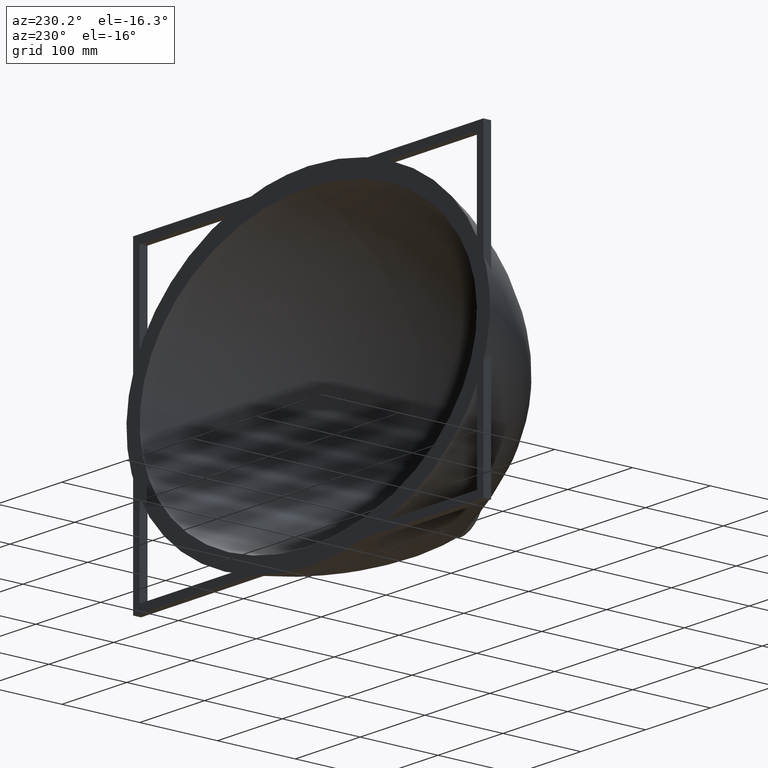
[diagram: clean part render]
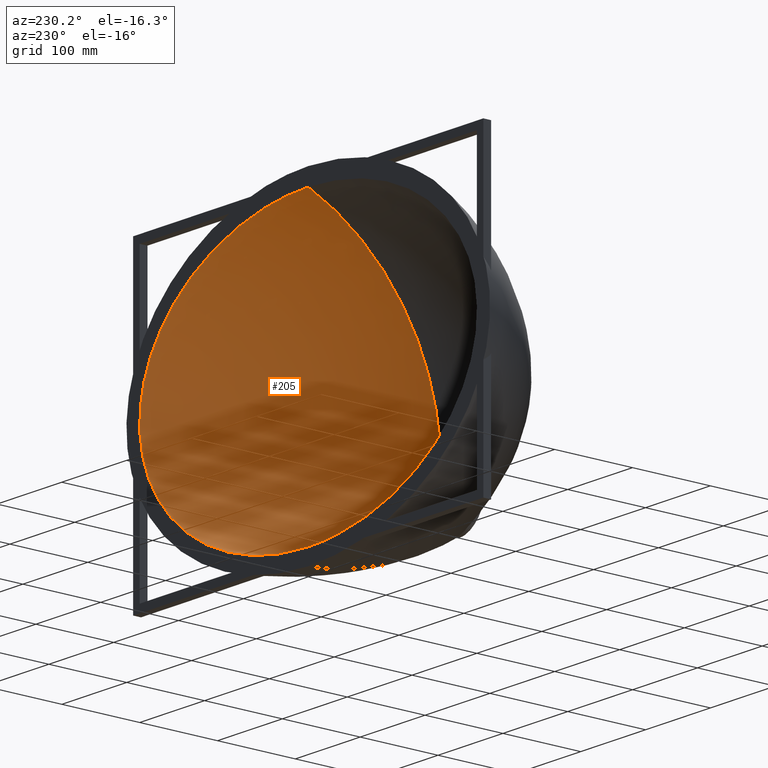
[diagram: same view with one face highlighted and labeled with its STEP entity id]
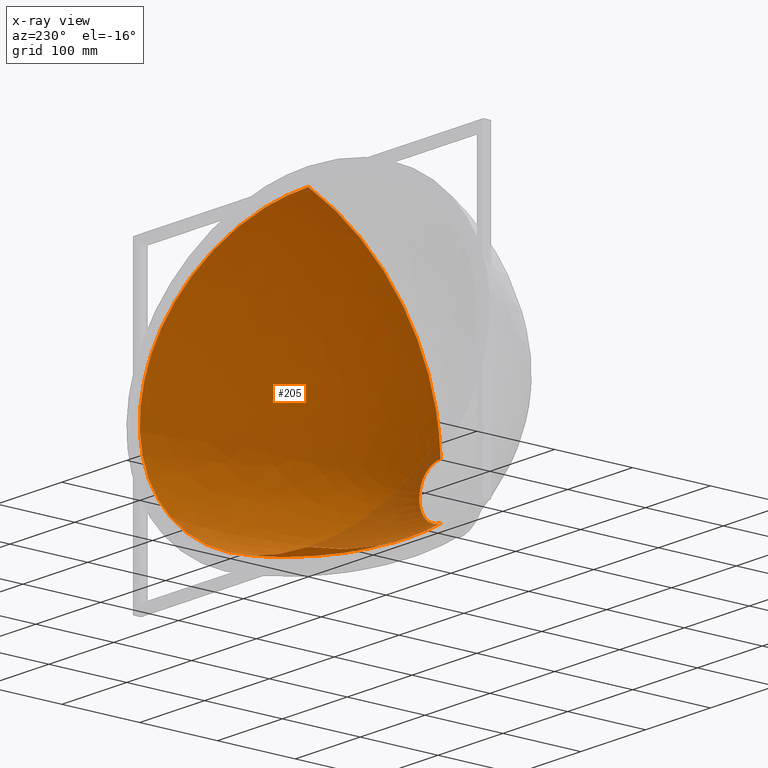
[diagram: x-ray of the same camera — body ghosted, the highlighted face saturated]
A machine part, auxiliary view. The second image highlights one B-rep face of the part: STEP entity #205.
The next image is the same camera in x-ray: the body ghosted, the highlighted face saturated — about 5% of this face is hidden behind the body in this view.
In plain terms, the highlighted face is a freeform B-spline surface patch.
Its self-contained STEP definition (entity closure, byte-faithful):
#55 = CARTESIAN_POINT ( 'NONE',  ( -101.5449471098858700, 0.0000000000000000000, 170.9625568690589400 ) ) ;
#78 = CARTESIAN_POINT ( 'NONE',  ( -2.566803417555719900, 0.0000000000000000000, -185.0000000000000000 ) ) ;
#96 = CARTESIAN_POINT ( 'NONE',  ( -161.8342083695843000, -101.6783197657684100, 88.80578691093683100 ) ) ;
#110 = VERTEX_POINT ( 'NONE', #3956 ) ;
#150 = ORIENTED_EDGE ( 'NONE', *, *, #2112, .T. ) ;
#171 = CARTESIAN_POINT ( 'NONE',  ( 10.39661467887218300, -60.48413380962352200, -180.3996876755838600 ) ) ;
#176 = CARTESIAN_POINT ( 'NONE',  ( 205.9902480284779900, 0.0000000000000000000, -114.1630345934451200 ) ) ;
#205 = ADVANCED_FACE ( 'NONE', ( #5457 ), #2160, .T. ) ;
#210 = CARTESIAN_POINT ( 'NONE',  ( 259.5316745247481000, 0.0000000000000000000, 17.82088000448748800 ) ) ;
#232 = CARTESIAN_POINT ( 'NONE',  ( 244.2896152594268200, 0.0000000000000000000, -64.95274962984925100 ) ) ;
#247 = CARTESIAN_POINT ( 'NONE',  ( -23.50363015430370300, -170.0000000000002600, -119.5035697538249500 ) ) ;
#254 = CARTESIAN_POINT ( 'NONE',  ( -18.59814842669459600, -169.9999999999999400, -123.5300270719805600 ) ) ;
#280 = CARTESIAN_POINT ( 'NONE',  ( -1.097201451189157500, -170.0000000000000300, -128.9859882443704200 ) ) ;
#291 = CARTESIAN_POINT ( 'NONE',  ( -11.73943308336916000, -169.9999999999998000, -127.1919447005213900 ) ) ;
#295 = CARTESIAN_POINT ( 'NONE',  ( -5.914309179725691500, -169.9999999999999700, -128.6510534024953100 ) ) ;
#299 = CARTESIAN_POINT ( 'NONE',  ( 181.7783064899985000, -82.71664245706091400, -115.9982643500457200 ) ) ;
#308 = CARTESIAN_POINT ( 'NONE',  ( 7.914675859144182400E-015, -170.0000000000000300, -129.0000000000001700 ) ) ;
#337 = CARTESIAN_POINT ( 'NONE',  ( -30.58158466705543800, -169.9999999999997200, -108.8823025719337100 ) ) ;
#341 = CARTESIAN_POINT ( 'NONE',  ( -27.53002336848421900, -170.0000000000000600, -114.5982864921670200 ) ) ;
#351 = CARTESIAN_POINT ( 'NONE',  ( -32.02994153714089300, -169.9999999999997700, -87.77838685151884600 ) ) ;
#356 = CARTESIAN_POINT ( 'NONE',  ( -32.82536436884399200, -169.9999999999998600, -91.61213455889432600 ) ) ;
#360 = CARTESIAN_POINT ( 'NONE',  ( -33.11611943972446400, -170.0000000000001100, -97.09694922582498600 ) ) ;
#365 = CARTESIAN_POINT ( 'NONE',  ( -32.53461509536830900, -170.0000000000002300, -102.5818216720686400 ) ) ;
#371 = CARTESIAN_POINT ( 'NONE',  ( 7.918111430696615800, -166.7986963599688300, 45.66895401434178600 ) ) ;
#378 = CARTESIAN_POINT ( 'NONE',  ( 130.6972901488588000, -72.03468751693841900, -151.8808939234452000 ) ) ;
#384 = CARTESIAN_POINT ( 'NONE',  ( 229.4518990156732900, 0.0000000000000000000, -88.80985288877889200 ) ) ;
#387 = CARTESIAN_POINT ( 'NONE',  ( -1.973936781004222500, -170.0000000000000000, -128.9398841801161100 ) ) ;
#399 = CARTESIAN_POINT ( 'NONE',  ( 219.0854808401760700, -100.2323460581834000, 1.155441149237736800 ) ) ;
#422 = CARTESIAN_POINT ( 'NONE',  ( -244.2896152223376000, 0.0000000000000000000, -64.95274969968421900 ) ) ;
#461 = CARTESIAN_POINT ( 'NONE',  ( -112.1245852803711900, 0.0000000000000000000, -167.6884198015981200 ) ) ;
#463 = CARTESIAN_POINT ( 'NONE',  ( 101.5449470893769300, 0.0000000000000000000, 170.9625568745314900 ) ) ;
#468 = CARTESIAN_POINT ( 'NONE',  ( -79.75803710388714800, -168.1268910383246300, 24.65807730239491100 ) ) ;
#484 = CARTESIAN_POINT ( 'NONE',  ( -0.4388568511917198500, -170.0000000000000300, -129.0000000000001700 ) ) ;
#543 = CARTESIAN_POINT ( 'NONE',  ( -38.77865759090425300, -121.7014424945202400, -157.4994537610010900 ) ) ;
#550 = CARTESIAN_POINT ( 'NONE',  ( -1.645451843880191900, -169.9999999999999100, -63.02925863359329400 ) ) ;
#572 = CARTESIAN_POINT ( 'NONE',  ( -3.286508291143622100, -170.0000000000000300, -63.15789940595817600 ) ) ;
#590 = CARTESIAN_POINT ( 'NONE',  ( -13.32210749721774500, -169.9999999999998300, -65.74138742436531400 ) ) ;
#591 = CARTESIAN_POINT ( 'NONE',  ( -30.98223631529779000, -169.9999999999999100, -84.67702610933527300 ) ) ;
#596 = CARTESIAN_POINT ( 'NONE',  ( -16.21662738416334500, -170.0000000000000600, -67.19847336104014300 ) ) ;
#605 = CARTESIAN_POINT ( 'NONE',  ( 5.777932479057578300, -60.42149997044546700, -180.5261086666008900 ) ) ;
#622 = CARTESIAN_POINT ( 'NONE',  ( -212.3007627005733600, -92.09182331010453000, -71.81629032477590600 ) ) ;
#662 = CARTESIAN_POINT ( 'NONE',  ( -4.918773945173699100, -170.0000000000000900, -63.36937936785528100 ) ) ;
#674 = CARTESIAN_POINT ( 'NONE',  ( -19.37360773140366600, -170.0000000000002300, -69.19179982466069100 ) ) ;
#682 = CARTESIAN_POINT ( 'NONE',  ( -21.45970067529020800, -170.0000000000000600, -70.81874945906331200 ) ) ;
#687 = CARTESIAN_POINT ( 'NONE',  ( -24.51018511363693600, -169.9999999999999100, -73.72277363439025100 ) ) ;
#697 = CARTESIAN_POINT ( 'NONE',  ( -27.53002936083850100, -170.0000000000003700, -77.40163849401473300 ) ) ;
#703 = CARTESIAN_POINT ( 'NONE',  ( -29.79273788609657500, -170.0000000000000600, -81.64009612144894800 ) ) ;
#719 = CARTESIAN_POINT ( 'NONE',  ( -8.467618967111789600E-014, -169.9999999999998900, -62.98637837613832600 ) ) ;
#727 = CARTESIAN_POINT ( 'NONE',  ( 9.732058371546907300, -169.9999999999999700, -64.44190684370720100 ) ) ;
#735 = CARTESIAN_POINT ( 'NONE',  ( 7.077546564080262400, -170.0000000000000300, -63.75888357771661000 ) ) ;
#740 = CARTESIAN_POINT ( 'NONE',  ( 4.918773945173532200, -169.9999999999999700, -63.36937936785530200 ) ) ;
#747 = CARTESIAN_POINT ( 'NONE',  ( 3.286508291143454200, -169.9999999999999400, -63.15789940595820400 ) ) ;
#761 = CARTESIAN_POINT ( 'NONE',  ( 33.58084321689379000, 0.0000000000000000000, 183.5771990633527700 ) ) ;
#771 = CARTESIAN_POINT ( 'NONE',  ( -7.077546564080428500, -170.0000000000001400, -63.75888357771660300 ) ) ;
#777 = CARTESIAN_POINT ( 'NONE',  ( 132.2521528523124600, -161.1591753289122300, -69.22836535408072200 ) ) ;
#793 = CARTESIAN_POINT ( 'NONE',  ( -34.76661030419609200, -167.1232757518996800, 42.15552983325399300 ) ) ;
#799 = CARTESIAN_POINT ( 'NONE',  ( 112.1245853174007300, 0.0000000000000000000, -167.6884197895803400 ) ) ;
#815 = CARTESIAN_POINT ( 'NONE',  ( 13.32210749721757300, -169.9999999999996900, -65.74138742436531400 ) ) ;
#839 = CARTESIAN_POINT ( 'NONE',  ( 130.0265065004052500, -166.6823960044745300, -37.59934031268797800 ) ) ;
#842 = CARTESIAN_POINT ( 'NONE',  ( -41.30958926748942900, -100.4647028521346600, 139.7592718520391800 ) ) ;
#853 = CARTESIAN_POINT ( 'NONE',  ( -59.82816381559847900, -100.6021361604114000, 136.4903864094978600 ) ) ;
#867 = CARTESIAN_POINT ( 'NONE',  ( -197.8533207069275200, 0.0000000000000000000, 120.9798537218212600 ) ) ;
#874 = CARTESIAN_POINT ( 'NONE',  ( 146.2772248432047500, 0.0000000000000000000, -153.7962908153193400 ) ) ;
#893 = CARTESIAN_POINT ( 'NONE',  ( 1.524100940938910600E-010, -118.7869051447035200, -161.3316144456561600 ) ) ;
#935 = CARTESIAN_POINT ( 'NONE',  ( 15.96528683286100000, -166.8614446746482800, 45.06505650758717300 ) ) ;
#955 = CARTESIAN_POINT ( 'NONE',  ( -9.732058371547079600, -169.9999999999999700, -64.44190684370714500 ) ) ;
#972 = CARTESIAN_POINT ( 'NONE',  ( -237.2697526475222700, 0.0000000000000000000, 77.72788248232859600 ) ) ;
#995 = CARTESIAN_POINT ( 'NONE',  ( 131.7903333139778100, -165.2807222127137000, -47.73059498201443100 ) ) ;
#1002 = CARTESIAN_POINT ( 'NONE',  ( 30.58158466705537700, -170.0000000000004300, -108.8823025719335600 ) ) ;
#1005 = CARTESIAN_POINT ( 'NONE',  ( 32.53461509536829500, -169.9999999999997700, -102.5818216720685400 ) ) ;
#1009 = CARTESIAN_POINT ( 'NONE',  ( 200.9292302996326200, -88.04168061887402500, -93.18661253542181600 ) ) ;
#1015 = CARTESIAN_POINT ( 'NONE',  ( 30.98223631716075100, -169.9999999999999400, -84.67702611448235900 ) ) ;
#1023 = ORIENTED_EDGE ( 'NONE', *, *, #3831, .F. ) ;
#1024 = CARTESIAN_POINT ( 'NONE',  ( -97.48662993548610700, -139.0680993196487800, -128.5529957980177500 ) ) ;
#1028 = CARTESIAN_POINT ( 'NONE',  ( 33.11611943972425100, -170.0000000000002000, -97.09694922582492900 ) ) ;
#1033 = CARTESIAN_POINT ( 'NONE',  ( -13.58047225771170500, -100.3324095255749000, 142.5341508308071900 ) ) ;
#1050 = CARTESIAN_POINT ( 'NONE',  ( 32.82536436884391400, -169.9999999999999400, -91.61213455889426900 ) ) ;
#1065 = CARTESIAN_POINT ( 'NONE',  ( 27.53002936083832700, -169.9999999999995500, -77.40163849401460500 ) ) ;
#1077 = CARTESIAN_POINT ( 'NONE',  ( 24.51018511363681900, -170.0000000000002300, -73.72277363439010900 ) ) ;
#1083 = CARTESIAN_POINT ( 'NONE',  ( 16.21662738416317500, -169.9999999999997700, -67.19847336104012900 ) ) ;
#1091 = CARTESIAN_POINT ( 'NONE',  ( 21.45970067529008300, -170.0000000000001400, -70.81874945906325500 ) ) ;
#1097 = CARTESIAN_POINT ( 'NONE',  ( 19.37360773140351000, -169.9999999999999400, -69.19179982466064900 ) ) ;
#1107 = CARTESIAN_POINT ( 'NONE',  ( 23.50363015430366400, -170.0000000000006800, -119.5035697538247100 ) ) ;
#1114 = CARTESIAN_POINT ( 'NONE',  ( 27.53002336848422600, -169.9999999999993500, -114.5982864921673300 ) ) ;
#1124 = CARTESIAN_POINT ( 'NONE',  ( 11.73943308336918500, -170.0000000000000000, -127.1919447005209800 ) ) ;
#1127 = CARTESIAN_POINT ( 'NONE',  ( 1.973936781004238500, -170.0000000000000300, -128.9398841801161700 ) ) ;
#1134 = CARTESIAN_POINT ( 'NONE',  ( 5.914309179725702100, -170.0000000000000300, -128.6510534024953900 ) ) ;
#1140 = CARTESIAN_POINT ( 'NONE',  ( 18.59814842669457100, -169.9999999999996300, -123.5300270719806300 ) ) ;
#1153 = CARTESIAN_POINT ( 'NONE',  ( 100.6154284231772500, -67.35913181186524000, -164.5788566093579000 ) ) ;
#1159 = CARTESIAN_POINT ( 'NONE',  ( 31.16490232506386700, -60.87504764638595100, -179.6046301080889100 ) ) ;
#1166 = CARTESIAN_POINT ( 'NONE',  ( 32.02994153826487200, -169.9999999999999100, -87.77838685693630800 ) ) ;
#1172 = CARTESIAN_POINT ( 'NONE',  ( 219.6954429199981600, -95.63849885924211900, -48.61384959088810100 ) ) ;
#1189 = CARTESIAN_POINT ( 'NONE',  ( -6.416783112928707000, 0.0000000000000000000, -184.9590691978430100 ) ) ;
#1206 = CARTESIAN_POINT ( 'NONE',  ( 13.58047226229799500, -100.3324095256412100, 142.5341508315014800 ) ) ;
#1215 = CARTESIAN_POINT ( 'NONE',  ( 215.3262452974707600, 0.0000000000000000000, 104.6215121355303200 ) ) ;
#1219 = VERTEX_POINT ( 'NONE', #3544 ) ;
#1222 = CARTESIAN_POINT ( 'NONE',  ( -130.6972901196513100, -72.03468750912125500, -151.8808939448902600 ) ) ;
#1231 = CARTESIAN_POINT ( 'NONE',  ( 3.048371017416728900E-010, -60.40230100190881800, -180.5641899279885400 ) ) ;
#1240 = CARTESIAN_POINT ( 'NONE',  ( -221.8944651530898400, -97.72422566344094700, -30.82330739874125300 ) ) ;
#1264 = CARTESIAN_POINT ( 'NONE',  ( 29.79273788864857100, -169.9999999999998900, -81.64009612622952300 ) ) ;
#1273 = VERTEX_POINT ( 'NONE', #3481 ) ;
#1281 = CARTESIAN_POINT ( 'NONE',  ( 211.8879677332387500, -101.3541522807655200, 26.41958882385945600 ) ) ;
#1311 = CARTESIAN_POINT ( 'NONE',  ( 124.8990415308468700, -168.0307683013245400, -22.10807015253968900 ) ) ;
#1330 = CARTESIAN_POINT ( 'NONE',  ( 47.99079047207255400, -167.3837411548451800, 38.76304219584049100 ) ) ;
#1352 = CARTESIAN_POINT ( 'NONE',  ( 0.4388568511917435000, -170.0000000000000300, -129.0000000000002000 ) ) ;
#1398 = CARTESIAN_POINT ( 'NONE',  ( -168.3880016434328300, 0.0000000000000000000, 141.7818512493566300 ) ) ;
#1403 = CARTESIAN_POINT ( 'NONE',  ( -68.94524658473652300, 0.0000000000000000000, -179.5850697860287300 ) ) ;
#1454 = CARTESIAN_POINT ( 'NONE',  ( -215.3262453614607400, 0.0000000000000000000, 104.6215120696889800 ) ) ;
#1473 = CARTESIAN_POINT ( 'NONE',  ( -1.445203445798531200, -118.7869051446153900, -161.3316144457045000 ) ) ;
#1478 = CARTESIAN_POINT ( 'NONE',  ( -19.48563583432444400, -119.3554168077772600, -160.5968919786662600 ) ) ;
#1483 = CARTESIAN_POINT ( 'NONE',  ( 1.524100940938910600E-010, -118.7869051447035200, -161.3316144456561600 ) ) ;
#1490 = CARTESIAN_POINT ( 'NONE',  ( 1.097201451189173700, -170.0000000000000300, -128.9859882443704500 ) ) ;
#1495 = CARTESIAN_POINT ( 'NONE',  ( 7.914675859144182400E-015, -170.0000000000000300, -129.0000000000001700 ) ) ;
#1506 = CARTESIAN_POINT ( 'NONE',  ( 128.6466772893562100, -156.8945205948489800, -84.56033403448825000 ) ) ;
#1512 = CARTESIAN_POINT ( 'NONE',  ( -34.61329639284462400, 0.0000000000000000000, -183.9673373527186000 ) ) ;
#1516 = EDGE_CURVE ( 'NONE', #110, #1219, #4203, .T. ) ;
#1527 = CARTESIAN_POINT ( 'NONE',  ( -132.8822941484146200, -163.6670079822287700, -57.73574673699650400 ) ) ;
#1533 = CARTESIAN_POINT ( 'NONE',  ( 34.61329639869962400, 0.0000000000000000000, -183.9673373519855200 ) ) ;
#1542 = CARTESIAN_POINT ( 'NONE',  ( -15.96528683149694000, -166.8614446744870700, 45.06505650654871400 ) ) ;
#1553 = CARTESIAN_POINT ( 'NONE',  ( 176.7752966758009700, -101.7757040723820100, 75.15800772592653800 ) ) ;
#1560 = CARTESIAN_POINT ( 'NONE',  ( 161.8342083234571200, -101.6783197671980300, 88.80578695623522400 ) ) ;
#1565 = CARTESIAN_POINT ( 'NONE',  ( -103.1489522319092300, -168.5363619780128200, 6.716406169552066700 ) ) ;
#1572 = CARTESIAN_POINT ( 'NONE',  ( -196.2075036124609800, -101.7291505643255500, 52.53914676512866300 ) ) ;
#1578 = CARTESIAN_POINT ( 'NONE',  ( 221.0554262184481600, -99.06643837885886200, -15.00529072263784900 ) ) ;
#1582 = CARTESIAN_POINT ( 'NONE',  ( 212.3007627212429600, -92.09182331956063200, -71.81629026579831500 ) ) ;
#1601 = CARTESIAN_POINT ( 'NONE',  ( 103.1489522079936600, -168.5363619801854600, 6.716406199087402700 ) ) ;
#1607 = CARTESIAN_POINT ( 'NONE',  ( -6.500890366905893300, -118.8853150000898200, -161.2054162392524900 ) ) ;
#1620 = CARTESIAN_POINT ( 'NONE',  ( 158.0814858641102200, -77.26741791087583500, -135.6597801079388700 ) ) ;
#1632 = CARTESIAN_POINT ( 'NONE',  ( 19.48563583624291300, -119.3554168101525500, -160.5968919771172200 ) ) ;
#1641 = CARTESIAN_POINT ( 'NONE',  ( 7.914675859144182400E-015, -170.0000000000000300, -129.0000000000001700 ) ) ;
#1646 = CARTESIAN_POINT ( 'NONE',  ( 0.4388568511917435000, -170.0000000000000300, -129.0000000000002000 ) ) ;
#1648 = CARTESIAN_POINT ( 'NONE',  ( 41.30958926724046200, -100.4647028523407400, 139.7592718547376500 ) ) ;
#1659 = CARTESIAN_POINT ( 'NONE',  ( 94.23376495546654000, -168.4188731049061400, 14.64182386654166700 ) ) ;
#1660 = CARTESIAN_POINT ( 'NONE',  ( 1.097201451189173700, -170.0000000000000300, -128.9859882443704500 ) ) ;
#1665 = CARTESIAN_POINT ( 'NONE',  ( 1.973936781004238500, -170.0000000000000300, -128.9398841801161700 ) ) ;
#1671 = EDGE_LOOP ( 'NONE', ( #4057, #1023, #150, #4823 ) ) ;
#1675 = CARTESIAN_POINT ( 'NONE',  ( -114.9757934278126900, -168.4810046370724000, -6.558884658889772000 ) ) ;
#1683 = CARTESIAN_POINT ( 'NONE',  ( 5.914309179725702100, -170.0000000000000300, -128.6510534024953900 ) ) ;
#1691 = CARTESIAN_POINT ( 'NONE',  ( 11.73943308336918500, -170.0000000000000000, -127.1919447005209800 ) ) ;
#1693 = CARTESIAN_POINT ( 'NONE',  ( 3.612973020026208000, -118.8099933056775700, -161.3023222456049800 ) ) ;
#1706 = CARTESIAN_POINT ( 'NONE',  ( 18.59814842669457100, -169.9999999999996300, -123.5300270719806300 ) ) ;
#1712 = CARTESIAN_POINT ( 'NONE',  ( 23.50363015430366400, -170.0000000000006800, -119.5035697538247100 ) ) ;
#1723 = CARTESIAN_POINT ( 'NONE',  ( -131.7903333150701400, -165.2807222076900800, -47.73059500546416700 ) ) ;
#1735 = CARTESIAN_POINT ( 'NONE',  ( 27.53002336848422600, -169.9999999999993500, -114.5982864921673300 ) ) ;
#1753 = CARTESIAN_POINT ( 'NONE',  ( 30.58158466705537700, -170.0000000000004300, -108.8823025719335600 ) ) ;
#1760 = CARTESIAN_POINT ( 'NONE',  ( 32.53461509536829500, -169.9999999999997700, -102.5818216720685400 ) ) ;
#1768 = CARTESIAN_POINT ( 'NONE',  ( 33.11611943972425100, -170.0000000000002000, -97.09694922582492900 ) ) ;
#1779 = CARTESIAN_POINT ( 'NONE',  ( -73.45947751149606100, 0.0000000000000000000, 177.8115466436256900 ) ) ;
#1780 = CARTESIAN_POINT ( 'NONE',  ( 32.82536436884391400, -169.9999999999999400, -91.61213455889426900 ) ) ;
#1792 = CARTESIAN_POINT ( 'NONE',  ( 32.02994153826487200, -169.9999999999999100, -87.77838685693630800 ) ) ;
#1799 = CARTESIAN_POINT ( 'NONE',  ( 38.77865759878368800, -121.7014424992332200, -157.4994537571244000 ) ) ;
#1800 = CARTESIAN_POINT ( 'NONE',  ( 30.98223631716075100, -169.9999999999999400, -84.67702611448235900 ) ) ;
#1806 = CARTESIAN_POINT ( 'NONE',  ( 29.79273788864857100, -169.9999999999998900, -81.64009612622952300 ) ) ;
#1813 = CARTESIAN_POINT ( 'NONE',  ( 27.53002936083832700, -169.9999999999995500, -77.40163849401460500 ) ) ;
#1824 = CARTESIAN_POINT ( 'NONE',  ( 3.888477213831453800E-009, 0.0000000000000000000, 185.1377951512043300 ) ) ;
#1825 = CARTESIAN_POINT ( 'NONE',  ( 24.51018511363681900, -170.0000000000002300, -73.72277363439010900 ) ) ;
#1831 = CARTESIAN_POINT ( 'NONE',  ( 21.45970067529008300, -170.0000000000001400, -70.81874945906325500 ) ) ;
#1834 = CARTESIAN_POINT ( 'NONE',  ( 19.37360773140351000, -169.9999999999999400, -69.19179982466064900 ) ) ;
#1845 = CARTESIAN_POINT ( 'NONE',  ( 16.21662738416317500, -169.9999999999997700, -67.19847336104012900 ) ) ;
#1852 = CARTESIAN_POINT ( 'NONE',  ( -111.4772774934118800, -145.6209346718663700, -114.7372125259618200 ) ) ;
#1855 = CARTESIAN_POINT ( 'NONE',  ( 13.32210749721757300, -169.9999999999996900, -65.74138742436531400 ) ) ;
#1863 = CARTESIAN_POINT ( 'NONE',  ( 9.732058371546907300, -169.9999999999999700, -64.44190684370720100 ) ) ;
#1868 = CARTESIAN_POINT ( 'NONE',  ( 6.500890367500512700, -118.8853150008827000, -161.2054162387754300 ) ) ;
#1879 = CARTESIAN_POINT ( 'NONE',  ( 132.8822941484927200, -163.6670079876717000, -57.73574671448551500 ) ) ;
#1880 = CARTESIAN_POINT ( 'NONE',  ( 7.077546564080262400, -170.0000000000000300, -63.75888357771661000 ) ) ;
#1885 = CARTESIAN_POINT ( 'NONE',  ( 4.918773945173532200, -169.9999999999999700, -63.36937936785530200 ) ) ;
#1893 = CARTESIAN_POINT ( 'NONE',  ( -132.2521528471505400, -161.1591753186759200, -69.22836539047772000 ) ) ;
#1901 = CARTESIAN_POINT ( 'NONE',  ( 3.286508291143454200, -169.9999999999999400, -63.15789940595820400 ) ) ;
#1905 = CARTESIAN_POINT ( 'NONE',  ( 1.645451843880019200, -169.9999999999998900, -63.02925863359329400 ) ) ;
#1907 = CARTESIAN_POINT ( 'NONE',  ( -27.42489433728246300, -100.3845558589379400, 141.4996067370633500 ) ) ;
#1917 = CARTESIAN_POINT ( 'NONE',  ( 197.8533206427430900, 0.0000000000000000000, 120.9798537739468100 ) ) ;
#1922 = CARTESIAN_POINT ( 'NONE',  ( -11.54635462865013400, 0.0000000000000000000, -184.8230582913892300 ) ) ;
#1933 = CARTESIAN_POINT ( 'NONE',  ( -33.58084321257378900, 0.0000000000000000000, 183.5771990638075400 ) ) ;
#1936 = CARTESIAN_POINT ( 'NONE',  ( 0.5484839479599433700, -169.9999999999998900, -63.00067179528998200 ) ) ;
#1938 = CARTESIAN_POINT ( 'NONE',  ( 59.82816380992162000, -100.6021361607201800, 136.4903864143604200 ) ) ;
#1943 = CARTESIAN_POINT ( 'NONE',  ( -8.467618967111789600E-014, -169.9999999999998900, -63.00067179528998200 ) ) ;
#1951 = CARTESIAN_POINT ( 'NONE',  ( 260.1059458264750200, 0.0000000000000000000, -0.6589969328866943600 ) ) ;
#2023 = CARTESIAN_POINT ( 'NONE',  ( -221.0554262213602500, -99.06643837468026000, -15.00529077107875700 ) ) ;
#2025 = CARTESIAN_POINT ( 'NONE',  ( 1.445203446103377400, -118.7869051447916700, -161.3316144456078100 ) ) ;
#2037 = B_SPLINE_CURVE_WITH_KNOTS ( 'NONE', 3,
 ( #4580, #4627, #4488, #4482 ),
 .UNSPECIFIED., .F., .F.,
 ( 4, 4 ),
 ( 0.0000000000000000000, 1.000000000000000000 ),
 .UNSPECIFIED. ) ;
#2038 = CARTESIAN_POINT ( 'NONE',  ( 1.645451843880023000, -169.9999999999998900, -63.02925863359329400 ) ) ;
#2046 = CARTESIAN_POINT ( 'NONE',  ( 81.01955231311032400, -132.7755290318717700, -140.1380242361425400 ) ) ;
#2051 = CARTESIAN_POINT ( 'NONE',  ( -31.16490232121122300, -60.87504764441063500, -179.6046301102378800 ) ) ;
#2065 = CARTESIAN_POINT ( 'NONE',  ( -81.01955229871150300, -132.7755290224717400, -140.1380242488191100 ) ) ;
#2070 = CARTESIAN_POINT ( 'NONE',  ( 113.2358966370135500, -101.1575478549437200, 119.1701626086586300 ) ) ;
#2101 = CARTESIAN_POINT ( 'NONE',  ( 139.1342930917562900, 0.0000000000000000000, 157.3938885502267900 ) ) ;
#2112 = EDGE_CURVE ( 'NONE', #1273, #1219, #2037, .T. ) ;
#2127 = CARTESIAN_POINT ( 'NONE',  ( 3.048371017416728900E-010, -60.40230100190881800, -180.5641899279885400 ) ) ;
#2134 = CARTESIAN_POINT ( 'NONE',  ( 62.64783615071378600, -127.1529339918621400, -149.3729875084795300 ) ) ;
#2158 = CARTESIAN_POINT ( 'NONE',  ( 111.4772775086861300, -145.6209346836106700, -114.7372125029550500 ) ) ;
#2160 = B_SPLINE_SURFACE_WITH_KNOTS ( 'NONE', 3, 3, ( 
 ( #4396, #5434, #5327, #2788, #1533, #2436, #799, #874, #2431, #176, #384, #232, #3832, #2708, #1951, #210, #2689, #3873, #1215, #1917, #2347, #2101, #463, #2576, #4373, #761, #3497, #1824, #2380, #1933, #3545, #1779, #55, #2172, #1398, #867, #1454, #972, #2601, #2250, #3394, #2512, #2190, #422, #2268, #2476, #3296, #5331, #461, #1403, #1512, #1922, #1189, #78, #3052 ),
 ( #2127, #2650, #605, #171, #1159, #2317, #1153, #378, #1620, #299, #1009, #1582, #1172, #2810, #1578, #399, #1281, #2375, #1553, #1560, #3178, #2070, #2306, #1938, #1648, #3475, #1206, #2331, #1033, #1907, #842, #853, #2521, #3672, #2357, #96, #2403, #1572, #2450, #5470, #2023, #1240, #2532, #622, #2444, #2211, #2415, #1222, #2362, #3356, #2051, #2231, #5453, #4055, #1231 ),
 ( #893, #2025, #1693, #1868, #1632, #1799, #2134, #2046, #3311, #2158, #3064, #1506, #777, #1879, #995, #839, #1311, #2411, #1601, #1659, #3814, #2916, #1330, #3797, #2288, #935, #371, #3401, #2667, #1542, #3731, #793, #3746, #3540, #468, #3677, #1565, #1675, #2324, #3522, #1723, #1527, #1893, #2421, #2397, #1852, #1024, #2065, #2394, #543, #1478, #1607, #3581, #1473, #1483 ),
 ( #1495, #1352, #1490, #1127, #1134, #1124, #1140, #1107, #1114, #1002, #1005, #1028, #1050, #1166, #1015, #1264, #1065, #1077, #1091, #1097, #1083, #815, #727, #735, #740, #747, #2038, #719, #550, #572, #662, #771, #955, #590, #596, #674, #682, #687, #697, #703, #591, #351, #356, #360, #365, #337, #341, #247, #254, #291, #295, #387, #280, #484, #308 ) ),
 .UNSPECIFIED., .F., .T., .F.,
 ( 4, 4 ),
 ( 4, 1, 1, 1, 1, 1, 1, 1, 1, 1, 1, 1, 1, 1, 1, 1, 1, 1, 1, 1, 1, 1, 1, 1, 1, 1, 1, 1, 1, 1, 1, 1, 1, 1, 1, 1, 1, 1, 1, 1, 1, 1, 1, 1, 1, 1, 1, 1, 1, 1, 1, 1, 4 ),
 ( 0.0000000000000000000, 1.000000000000000000 ),
 ( 0.0000000000000000000, 0.006250000000000088800, 0.009374999999999911200, 0.01249999999999995600, 0.06250000000000000000, 0.09375000000000000000, 0.1250000000000000000, 0.1562500000000000000, 0.1875000000000000000, 0.2187500000000000000, 0.2500000000000000000, 0.2656250000000000000, 0.2968750000000000000, 0.3054857052560912000, 0.3125000000000000000, 0.3437500000000000000, 0.3750000000000000000, 0.3828125000000000000, 0.4062500000000000000, 0.4140625000000000000, 0.4375000000000000000, 0.4531250000000000000, 0.4687500000000000000, 0.4765625000000000000, 0.4843750000000000000, 0.4921875000000000000, 0.5000000000000000000, 0.5078125000000000000, 0.5156250000000000000, 0.5234375000000000000, 0.5312500000000000000, 0.5468750000000000000, 0.5625000000000000000, 0.5859375000000000000, 0.5937500000000000000, 0.6171875000000000000, 0.6250000000000000000, 0.6562500000000000000, 0.6875000000000000000, 0.6945142946655007400, 0.7031250000000000000, 0.7343750000000000000, 0.7500000000000000000, 0.7812500000000000000, 0.8125000000000000000, 0.8437500000000000000, 0.8750000000000000000, 0.9062500000000000000, 0.9375000000000000000, 0.9875000000000000400, 0.9906249999999999800, 0.9937500000000000200, 1.000000000000000000 ),
 .UNSPECIFIED. ) ;
#2172 = CARTESIAN_POINT ( 'NONE',  ( -139.1342931326053600, 0.0000000000000000000, 157.3938885333099100 ) ) ;
#2190 = CARTESIAN_POINT ( 'NONE',  ( -255.0079137470581300, 0.0000000000000000000, -38.86048423362694800 ) ) ;
#2211 = CARTESIAN_POINT ( 'NONE',  ( -181.7783064586218100, -82.71664244729403500, -115.9982643908294300 ) ) ;
#2231 = CARTESIAN_POINT ( 'NONE',  ( -10.39661467768020700, -60.48413380896416000, -180.3996876762214800 ) ) ;
#2250 = CARTESIAN_POINT ( 'NONE',  ( -259.5316745309576700, 0.0000000000000000000, 17.82087994229939200 ) ) ;
#2268 = CARTESIAN_POINT ( 'NONE',  ( -229.4518989697168400, 0.0000000000000000000, -88.80985294769922700 ) ) ;
#2288 = CARTESIAN_POINT ( 'NONE',  ( 24.02677678723970400, -166.9578895364270200, 44.05243344633369400 ) ) ;
#2306 = CARTESIAN_POINT ( 'NONE',  ( 82.63337726983252200, -100.8185660866823700, 130.6263130440378000 ) ) ;
#2317 = CARTESIAN_POINT ( 'NONE',  ( 62.05236358081703700, -62.82589123635788300, -175.5383430836969300 ) ) ;
#2324 = CARTESIAN_POINT ( 'NONE',  ( -124.8990415461964100, -168.0307682969817100, -22.10807019377700700 ) ) ;
#2331 = CARTESIAN_POINT ( 'NONE',  ( 2.597816890712497400E-009, -100.3133365238683900, 142.8813953691429500 ) ) ;
#2347 = CARTESIAN_POINT ( 'NONE',  ( 168.3880015876912400, 0.0000000000000000000, 141.7818512817267400 ) ) ;
#2357 = CARTESIAN_POINT ( 'NONE',  ( -137.2440861088230700, -101.4359267998660000, 106.1407529435990800 ) ) ;
#2362 = CARTESIAN_POINT ( 'NONE',  ( -100.6154283992664200, -67.35913180565974300, -164.5788566228046900 ) ) ;
#2375 = CARTESIAN_POINT ( 'NONE',  ( 196.2075035712572100, -101.7291505668826700, 52.53914683323463900 ) ) ;
#2380 = CARTESIAN_POINT ( 'NONE',  ( -16.58790103192467000, 0.0000000000000000000, 184.7476461294701000 ) ) ;
#2394 = CARTESIAN_POINT ( 'NONE',  ( -62.64783613887832600, -127.1529339844002800, -149.3729875167236100 ) ) ;
#2397 = CARTESIAN_POINT ( 'NONE',  ( -122.4713193162580500, -152.0243248750598200, -98.99278234014244000 ) ) ;
#2403 = CARTESIAN_POINT ( 'NONE',  ( -176.7752967224104500, -101.7757040705736800, 75.15800767046704300 ) ) ;
#2411 = CARTESIAN_POINT ( 'NONE',  ( 114.9757934064665200, -168.4810046401453600, -6.558884622753005500 ) ) ;
#2415 = CARTESIAN_POINT ( 'NONE',  ( -158.0814858321655500, -77.26741790183939400, -135.6597801385951800 ) ) ;
#2421 = CARTESIAN_POINT ( 'NONE',  ( -128.6466772796487700, -156.8945205834789900, -84.56033406685934000 ) ) ;
#2431 = CARTESIAN_POINT ( 'NONE',  ( 177.9506943263256700, 0.0000000000000000000, -135.9285441345604100 ) ) ;
#2436 = CARTESIAN_POINT ( 'NONE',  ( 68.94524660888869500, 0.0000000000000000000, -179.5850697822002600 ) ) ;
#2444 = CARTESIAN_POINT ( 'NONE',  ( -200.9292302724199400, -88.04168060896529400, -93.18661258618435300 ) ) ;
#2450 = CARTESIAN_POINT ( 'NONE',  ( -211.8879677622130400, -101.3541522771521000, 26.41958874611816200 ) ) ;
#2476 = CARTESIAN_POINT ( 'NONE',  ( -205.9902479773966500, 0.0000000000000000000, -114.1630346393565700 ) ) ;
#2498 = VERTEX_POINT ( 'NONE', #2774 ) ;
#2512 = CARTESIAN_POINT ( 'NONE',  ( -259.3992761697404600, 0.0000000000000000000, -18.69248544513646200 ) ) ;
#2521 = CARTESIAN_POINT ( 'NONE',  ( -82.63337728446762800, -100.8185660862272800, 130.6263130349607300 ) ) ;
#2532 = CARTESIAN_POINT ( 'NONE',  ( -219.6954429082276500, -95.63849885072858100, -48.61384965793293800 ) ) ;
#2575 = EDGE_CURVE ( 'NONE', #2498, #110, #2603, .T. ) ;
#2576 = CARTESIAN_POINT ( 'NONE',  ( 73.45947750377109700, 0.0000000000000000000, 177.8115466449803300 ) ) ;
#2601 = CARTESIAN_POINT ( 'NONE',  ( -253.7212669368725200, 0.0000000000000000000, 47.01350990581718000 ) ) ;
#2603 = B_SPLINE_CURVE_WITH_KNOTS ( 'NONE', 3,
 ( #2949, #2930, #2728, #2719 ),
 .UNSPECIFIED., .F., .F.,
 ( 4, 4 ),
 ( 0.0000000000000000000, 1.000000000000000000 ),
 .UNSPECIFIED. ) ;
#2650 = CARTESIAN_POINT ( 'NONE',  ( 2.311225197092631400, -60.40230100198213100, -180.5641899279270000 ) ) ;
#2667 = CARTESIAN_POINT ( 'NONE',  ( -7.918111428406986900, -166.7986963598892500, 45.66895401386031500 ) ) ;
#2689 = CARTESIAN_POINT ( 'NONE',  ( 253.7212669017755500, 0.0000000000000000000, 47.01351000140578400 ) ) ;
#2708 = CARTESIAN_POINT ( 'NONE',  ( 259.3992761764650900, 0.0000000000000000000, -18.69248538637459900 ) ) ;
#2719 = CARTESIAN_POINT ( 'NONE',  ( -8.467618967111789600E-014, -169.9999999999998900, -63.00067179528998200 ) ) ;
#2728 = CARTESIAN_POINT ( 'NONE',  ( 1.248082366622771400E-009, -166.7833963462323400, 45.80402887660420000 ) ) ;
#2765 = B_SPLINE_CURVE_WITH_KNOTS ( 'NONE', 3,
 ( #3955, #3951, #3948, #3940, #3936, #3929, #3920, #3915, #3910, #3906, #3897, #3893, #3889, #3876, #3871, #3867, #3853, #3846, #3839, #3835, #3830, #3828, #3813, #3804, #3800, #3796, #3792, #3785, #3781 ),
 .UNSPECIFIED., .F., .F.,
 ( 4, 1, 1, 1, 1, 1, 1, 1, 1, 1, 1, 1, 1, 1, 1, 1, 1, 1, 1, 1, 1, 1, 1, 1, 1, 1, 4 ),
 ( 0.0000000000000000000, 0.006250000000000088800, 0.009374999999999911200, 0.01249999999999995600, 0.06250000000000000000, 0.09375000000000000000, 0.1250000000000000000, 0.1562500000000000000, 0.1875000000000000000, 0.2187500000000000000, 0.2500000000000000000, 0.2656250000000000000, 0.2968750000000000000, 0.3054857052560912000, 0.3125000000000000000, 0.3437500000000000000, 0.3750000000000000000, 0.3828125000000000000, 0.4062500000000000000, 0.4140625000000000000, 0.4375000000000000000, 0.4531250000000000000, 0.4687500000000000000, 0.4765625000000000000, 0.4843750000000000000, 0.4921875000000000000, 0.5000000000000000000 ),
 .UNSPECIFIED. ) ;
#2774 = CARTESIAN_POINT ( 'NONE',  ( 3.744437485769802600E-009, 0.0000000000000000000, 185.0077454772356300 ) ) ;
#2788 = CARTESIAN_POINT ( 'NONE',  ( 11.54635463045116600, 0.0000000000000000000, -184.8230582912633500 ) ) ;
#2810 = CARTESIAN_POINT ( 'NONE',  ( 221.8944651534981500, -97.72422566796818400, -30.82330735199750600 ) ) ;
#2916 = CARTESIAN_POINT ( 'NONE',  ( 65.75914860801410100, -167.7917439943316800, 32.15789512977750800 ) ) ;
#2930 = CARTESIAN_POINT ( 'NONE',  ( 2.496260143036721500E-009, -100.3196941911149500, 142.7656471898134200 ) ) ;
#2949 = CARTESIAN_POINT ( 'NONE',  ( 3.744437485769802600E-009, 0.0000000000000000000, 185.0077454772356300 ) ) ;
#3052 = CARTESIAN_POINT ( 'NONE',  ( 4.572232349675520200E-010, 0.0000000000000000000, -185.0000000000000000 ) ) ;
#3064 = CARTESIAN_POINT ( 'NONE',  ( 122.4713193293347800, -152.0243248869742000, -98.99278231195012300 ) ) ;
#3178 = CARTESIAN_POINT ( 'NONE',  ( 137.2440860692005900, -101.4359268008656700, 106.1407529741082500 ) ) ;
#3296 = CARTESIAN_POINT ( 'NONE',  ( -177.9506942754561000, 0.0000000000000000000, -135.9285441674715900 ) ) ;
#3311 = CARTESIAN_POINT ( 'NONE',  ( 97.48662995115405700, -139.0680993305145700, -128.5529957803658800 ) ) ;
#3356 = CARTESIAN_POINT ( 'NONE',  ( -62.05236356497720600, -62.82589123243855100, -175.5383430895617500 ) ) ;
#3394 = CARTESIAN_POINT ( 'NONE',  ( -260.1059458262676600, 0.0000000000000000000, -0.6589969940730567900 ) ) ;
#3401 = CARTESIAN_POINT ( 'NONE',  ( 1.299716338605076300E-009, -166.7757463393840300, 45.87156630785578700 ) ) ;
#3475 = CARTESIAN_POINT ( 'NONE',  ( 27.42489434004659200, -100.3845558590723400, 141.4996067386034300 ) ) ;
#3481 = CARTESIAN_POINT ( 'NONE',  ( 4.572232349675520200E-010, 0.0000000000000000000, -185.0000000000000000 ) ) ;
#3497 = CARTESIAN_POINT ( 'NONE',  ( 16.58790103883738700, 0.0000000000000000000, 184.7476461291264500 ) ) ;
#3522 = CARTESIAN_POINT ( 'NONE',  ( -130.0265065026238200, -166.6823959998857800, -37.59934033664630000 ) ) ;
#3540 = CARTESIAN_POINT ( 'NONE',  ( -65.75914862275489300, -167.7917439934794000, 32.15789511934673300 ) ) ;
#3544 = CARTESIAN_POINT ( 'NONE',  ( 7.914675859144182400E-015, -170.0000000000000300, -129.0000000000001700 ) ) ;
#3545 = CARTESIAN_POINT ( 'NONE',  ( -50.65242750111525500, 0.0000000000000000000, 181.5864721567493200 ) ) ;
#3581 = CARTESIAN_POINT ( 'NONE',  ( -3.612973019650036900, -118.8099933052368300, -161.3023222458564900 ) ) ;
#3672 = CARTESIAN_POINT ( 'NONE',  ( -113.2358966659637600, -101.1575478542338800, 119.1701625899922300 ) ) ;
#3677 = CARTESIAN_POINT ( 'NONE',  ( -94.23376497904631300, -168.4188731031888700, 14.64182384227327000 ) ) ;
#3731 = CARTESIAN_POINT ( 'NONE',  ( -24.02677678740512600, -166.9578895361797200, 44.05243344458240500 ) ) ;
#3746 = CARTESIAN_POINT ( 'NONE',  ( -47.99079047953902900, -167.3837411542989200, 38.76304219050387400 ) ) ;
#3781 = CARTESIAN_POINT ( 'NONE',  ( 3.744437485769802600E-009, 0.0000000000000000000, 185.0077454772356300 ) ) ;
#3785 = CARTESIAN_POINT ( 'NONE',  ( 5.529300348871447400, 7.806436041249595600E-029, 185.0077454771783600 ) ) ;
#3792 = CARTESIAN_POINT ( 'NONE',  ( 16.58790103883738700, 7.395570986446985700E-029, 184.7476461291264500 ) ) ;
#3796 = CARTESIAN_POINT ( 'NONE',  ( 33.58084321689379000, 1.232595164407830900E-029, 183.5771990633527700 ) ) ;
#3797 = CARTESIAN_POINT ( 'NONE',  ( 34.76661030127609600, -167.1232757522702700, 42.15552983626443500 ) ) ;
#3800 = CARTESIAN_POINT ( 'NONE',  ( 50.65242750113803500, -4.930380657631323800E-029, 181.5864721566628600 ) ) ;
#3804 = CARTESIAN_POINT ( 'NONE',  ( 73.45947750377109700, -9.860761315262647600E-029, 177.8115466449803300 ) ) ;
#3813 = CARTESIAN_POINT ( 'NONE',  ( 101.5449470893769300, -1.232595164407830900E-029, 170.9625568745314900 ) ) ;
#3814 = CARTESIAN_POINT ( 'NONE',  ( 79.75803708369518600, -168.1268910395251300, 24.65807731899375100 ) ) ;
#3828 = CARTESIAN_POINT ( 'NONE',  ( 139.1342930917562900, 1.232595164407830900E-028, 157.3938885502267900 ) ) ;
#3830 = CARTESIAN_POINT ( 'NONE',  ( 168.3880015876912400, 0.0000000000000000000, 141.7818512817267400 ) ) ;
#3831 = EDGE_CURVE ( 'NONE', #1273, #2498, #2765, .T. ) ;
#3832 = CARTESIAN_POINT ( 'NONE',  ( 255.0079137717297000, 0.0000000000000000000, -38.86048415290631700 ) ) ;
#3835 = CARTESIAN_POINT ( 'NONE',  ( 197.8533206427430900, -7.395570986446985700E-029, 120.9798537739468100 ) ) ;
#3839 = CARTESIAN_POINT ( 'NONE',  ( 215.3262452974707600, -6.162975822039154700E-030, 104.6215121355303200 ) ) ;
#3846 = CARTESIAN_POINT ( 'NONE',  ( 237.2697525929354200, 8.011868568650901100E-029, 77.72788256511545100 ) ) ;
#3853 = CARTESIAN_POINT ( 'NONE',  ( 253.7212669017755500, -1.848892746611746400E-029, 47.01351000140578400 ) ) ;
#3867 = CARTESIAN_POINT ( 'NONE',  ( 259.5316745247481000, 1.232595164407830900E-029, 17.82088000448748800 ) ) ;
#3871 = CARTESIAN_POINT ( 'NONE',  ( 260.1059458264750200, 2.465190328815661900E-029, -0.6589969328866943600 ) ) ;
#3873 = CARTESIAN_POINT ( 'NONE',  ( 237.2697525929354200, 0.0000000000000000000, 77.72788256511545100 ) ) ;
#3876 = CARTESIAN_POINT ( 'NONE',  ( 259.3992761764650900, 3.697785493223492800E-029, -18.69248538637459900 ) ) ;
#3889 = CARTESIAN_POINT ( 'NONE',  ( 255.0079137717297000, 1.848892746611746400E-029, -38.86048415290631700 ) ) ;
#3893 = CARTESIAN_POINT ( 'NONE',  ( 244.2896152594268200, 1.232595164407830900E-029, -64.95274962984925100 ) ) ;
#3897 = CARTESIAN_POINT ( 'NONE',  ( 229.4518990156732900, 0.0000000000000000000, -88.80985288877889200 ) ) ;
#3906 = CARTESIAN_POINT ( 'NONE',  ( 205.9902480284779900, -1.232595164407830900E-029, -114.1630345934451200 ) ) ;
#3910 = CARTESIAN_POINT ( 'NONE',  ( 177.9506943263256700, 8.628166150854816600E-029, -135.9285441345604100 ) ) ;
#3915 = CARTESIAN_POINT ( 'NONE',  ( 146.2772248432047500, -7.395570986446985700E-029, -153.7962908153193400 ) ) ;
#3920 = CARTESIAN_POINT ( 'NONE',  ( 112.1245853174007400, 3.697785493223492800E-029, -167.6884197895803400 ) ) ;
#3929 = CARTESIAN_POINT ( 'NONE',  ( 68.94524660888869500, 8.628166150854816600E-029, -179.5850697822002600 ) ) ;
#3936 = CARTESIAN_POINT ( 'NONE',  ( 34.61329639869962400, 6.162975822039154700E-030, -183.9673373519855200 ) ) ;
#3940 = CARTESIAN_POINT ( 'NONE',  ( 11.54635463045116600, -6.162975822039154700E-030, -184.8230582912633500 ) ) ;
#3948 = CARTESIAN_POINT ( 'NONE',  ( 6.416783114061224100, -1.232595164407830900E-029, -184.9590691978137900 ) ) ;
#3951 = CARTESIAN_POINT ( 'NONE',  ( 2.566803418470212400, -1.232595164407830900E-029, -185.0000000000000000 ) ) ;
#3955 = CARTESIAN_POINT ( 'NONE',  ( 4.572232349675520200E-010, 0.0000000000000000000, -185.0000000000000000 ) ) ;
#3956 = CARTESIAN_POINT ( 'NONE',  ( -8.467618967111789600E-014, -169.9999999999998900, -63.00067179528998200 ) ) ;
#4055 = CARTESIAN_POINT ( 'NONE',  ( -2.311225196482916900, -60.40230100183551100, -180.5641899280500700 ) ) ;
#4057 = ORIENTED_EDGE ( 'NONE', *, *, #2575, .F. ) ;
#4203 = B_SPLINE_CURVE_WITH_KNOTS ( 'NONE', 3,
 ( #1943, #1936, #1905, #1901, #1885, #1880, #1863, #1855, #1845, #1834, #1831, #1825, #1813, #1806, #1800, #1792, #1780, #1768, #1760, #1753, #1735, #1712, #1706, #1691, #1683, #1665, #1660, #1646, #1641 ),
 .UNSPECIFIED., .F., .F.,
 ( 4, 1, 1, 1, 1, 1, 1, 1, 1, 1, 1, 1, 1, 1, 1, 1, 1, 1, 1, 1, 1, 1, 1, 1, 1, 1, 4 ),
 ( 0.4999999999999999400, 0.5078125000000000000, 0.5156250000000000000, 0.5234375000000000000, 0.5312500000000000000, 0.5468750000000000000, 0.5625000000000000000, 0.5859375000000000000, 0.5937500000000000000, 0.6171875000000000000, 0.6250000000000000000, 0.6562500000000000000, 0.6875000000000000000, 0.6945142947439086900, 0.7031250000000000000, 0.7343750000000000000, 0.7500000000000000000, 0.7812500000000000000, 0.8125000000000000000, 0.8437500000000000000, 0.8750000000000000000, 0.9062500000000000000, 0.9375000000000000000, 0.9875000000000000400, 0.9906250000000000900, 0.9937499999999999100, 1.000000000000000000 ),
 .UNSPECIFIED. ) ;
#4373 = CARTESIAN_POINT ( 'NONE',  ( 50.65242750113803500, 0.0000000000000000000, 181.5864721566628600 ) ) ;
#4396 = CARTESIAN_POINT ( 'NONE',  ( 4.572232349675520200E-010, 0.0000000000000000000, -185.0000000000000000 ) ) ;
#4482 = CARTESIAN_POINT ( 'NONE',  ( 7.914675859144182400E-015, -170.0000000000000300, -129.0000000000001700 ) ) ;
#4488 = CARTESIAN_POINT ( 'NONE',  ( 1.524100940938910600E-010, -118.7869051447035200, -161.3316144456561600 ) ) ;
#4580 = CARTESIAN_POINT ( 'NONE',  ( 4.572232349675520200E-010, 0.0000000000000000000, -185.0000000000000000 ) ) ;
#4627 = CARTESIAN_POINT ( 'NONE',  ( 3.048371017416728900E-010, -60.40230100190881800, -180.5641899279885400 ) ) ;
#4823 = ORIENTED_EDGE ( 'NONE', *, *, #1516, .F. ) ;
#5327 = CARTESIAN_POINT ( 'NONE',  ( 6.416783114061223300, 0.0000000000000000000, -184.9590691978137900 ) ) ;
#5331 = CARTESIAN_POINT ( 'NONE',  ( -146.2772247974058100, 0.0000000000000000000, -153.7962908367967700 ) ) ;
#5434 = CARTESIAN_POINT ( 'NONE',  ( 2.566803418470212400, 0.0000000000000000000, -185.0000000000000000 ) ) ;
#5453 = CARTESIAN_POINT ( 'NONE',  ( -5.777932478304570000, -60.42149997007892600, -180.5261086669280000 ) ) ;
#5457 = FACE_OUTER_BOUND ( 'NONE', #1671, .T. ) ;
#5470 = CARTESIAN_POINT ( 'NONE',  ( -219.0854808462910900, -100.2323460543663200, 1.155441100044987300 ) ) ;